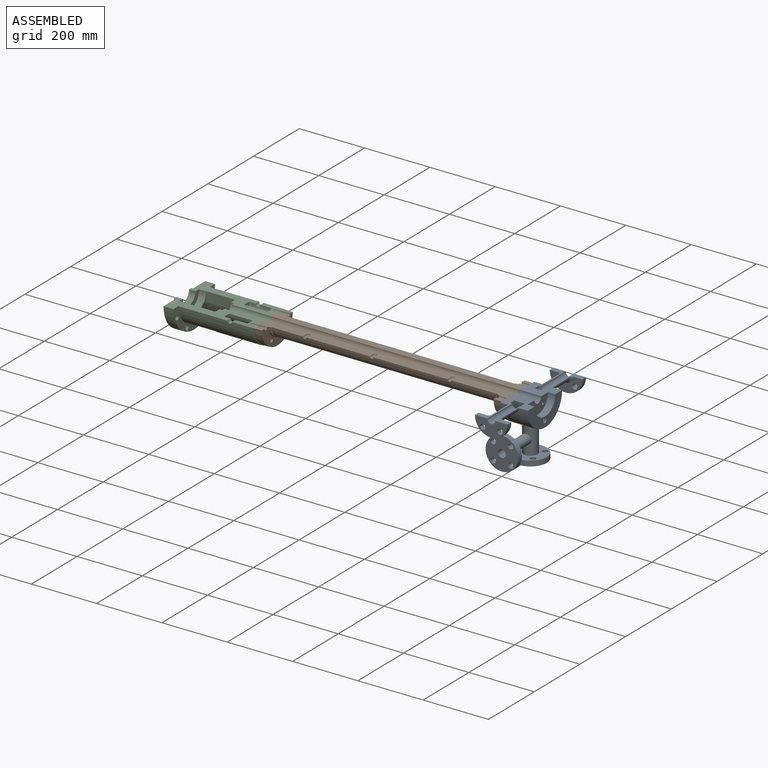
[diagram: assembled view]
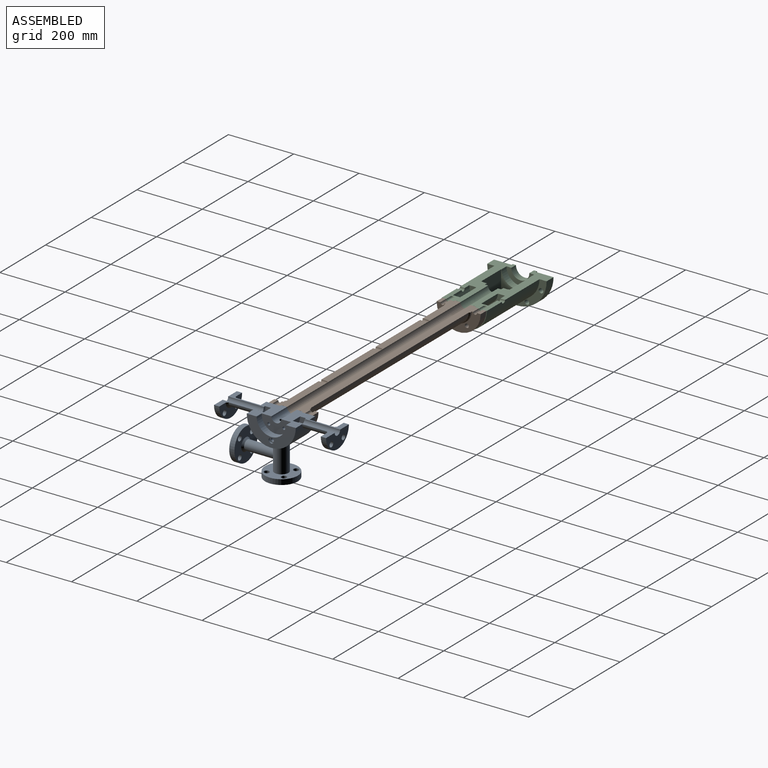
[diagram: assembled view, second angle]
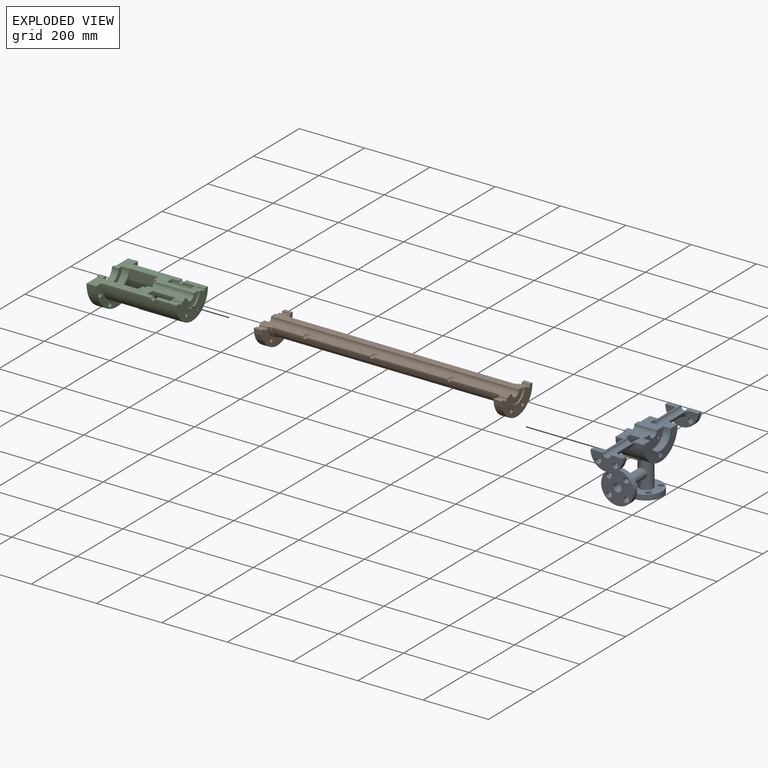
[diagram: exploded view]
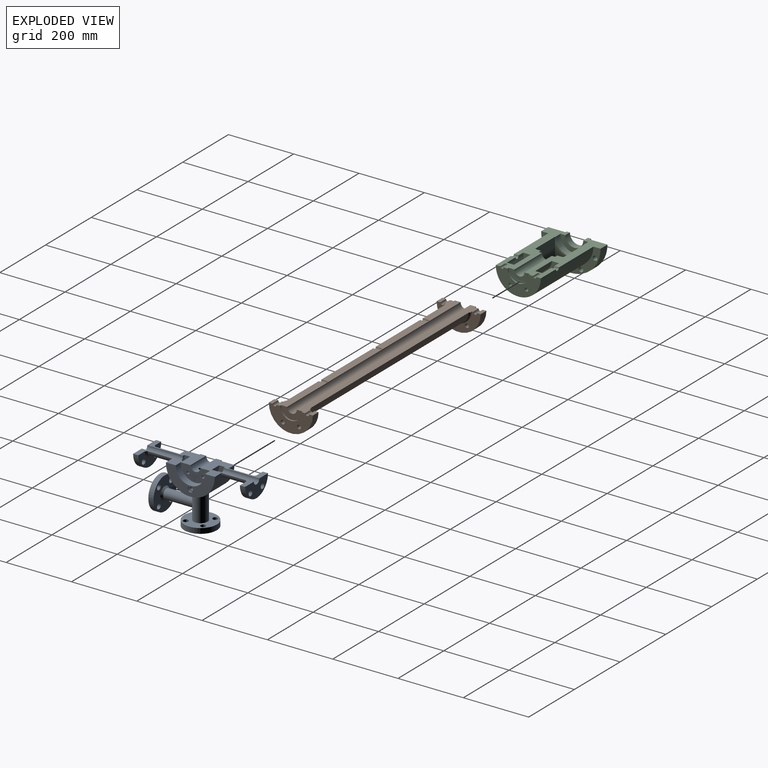
[diagram: exploded view, second angle]
ASSEMBLY  parts=3 mates=2
PART A: 78 faces, bbox 100x343x173 mm
  f0: plane 49.2x24.6mm, normal (-1,0,0), area 597.2mm2, adj f2,f29,f76,f77
  f1: cylinder r=12mm len=110.16mm, axis (0,1,0), area 4131.1mm2, adj f9,f21,f76
  f2: cylinder r=15mm len=68.5mm, axis (1,0,0), area 3139.9mm2, adj f0,f7,f32,f76,f77
  f3: cylinder r=75mm len=150mm, axis (-1,0,0), area 17845.1mm2, adj f5,f16,f24,f28,f38,f76,f77
  f4: plane 65x32.5mm, normal (-1,0,0), area 462.6mm2, adj f8,f30,f76,f77
  f5: plane 150x75mm, normal (1,0,0), area 5482mm2, adj f3,f6,f73,f76,f77
  f6: cylinder r=44.8mm len=89.6mm, axis (1,0,0), area 3096.4mm2, adj f5,f7,f76,f77
  f7: plane 89.6x44.8mm, normal (1,0,0), area 2685.7mm2, adj f2,f6,f44,f46,f76,f77
  f8: cylinder r=32.5mm len=65mm, axis (-1,0,0), area 510.5mm2, adj f4,f28,f76,f77
  f9: cylinder r=62.5mm len=61.34mm, axis (-1,0,0), area 2456.1mm2, adj f1,f14,f27,f36,f40,f76
  f10: cylinder r=62.5mm len=61.34mm, axis (-1,0,0), area 2456.1mm2, adj f13,f15,f26,f37,f40,f77
  f11: cylinder r=44.5mm len=42.85mm, axis (-1,0,0), area 1848mm2, adj f14,f27,f36,f76
  f12: cylinder r=44.5mm len=42.85mm, axis (-1,0,0), area 1848mm2, adj f13,f26,f37,f77
  f13: plane 61.34x50.5mm, normal (-1,0,0), area 1294.8mm2, adj f10,f12,f37,f77
  f14: plane 61.34x50.5mm, normal (-1,0,0), area 1294.8mm2, adj f9,f11,f36,f76
  f15: cylinder r=12mm len=110.16mm, axis (0,-1,0), area 4131.1mm2, adj f10,f19,f77
  f16: cylinder r=16.5mm len=77.34mm, axis (0,-1,0), area 3961.1mm2, adj f3,f20,f77
  f17: cylinder r=50mm len=100mm, axis (0,-1,0), area 2513.3mm2, adj f18,f19,f77
  f18: plane 100x50mm, normal (0,1,0), area 2798.8mm2, adj f17,f20,f47,f48,f77
  f19: plane 100x50mm, normal (0,-1,0), area 3298.7mm2, adj f15,f17,f47,f48,f77
  f20: cone r=16.5mm half-angle=45deg, axis (0,-1,0), area 422.1mm2, adj f16,f18,f77
  f21: plane 100x50mm, normal (0,1,0), area 3298.7mm2, adj f1,f23,f49,f50,f76
  f22: plane 100x50mm, normal (0,-1,0), area 2798.8mm2, adj f23,f25,f49,f50,f76
  f23: cylinder r=50mm len=100mm, axis (0,1,0), area 2513.3mm2, adj f21,f22,f76
  f24: cylinder r=16.5mm len=77.34mm, axis (0,1,0), area 3961.1mm2, adj f3,f25,f76
  f25: cone r=16.5mm half-angle=45deg, axis (0,1,0), area 422.1mm2, adj f22,f24,f76
  f26: plane 61.34x50.5mm, normal (1,0,0), area 1294.8mm2, adj f10,f12,f37,f77
  f27: plane 61.34x50.5mm, normal (1,0,0), area 1294.8mm2, adj f9,f11,f36,f76
  f28: plane 150x75mm, normal (-1,0,0), area 7176.6mm2, adj f3,f8,f76,f77
  f29: cylinder r=24.6mm len=49.2mm, axis (-1,0,0), area 85mm2, adj f0,f31,f76,f77
  f30: cylinder r=27.6mm len=55.2mm, axis (-1,0,0), area 95.4mm2, adj f4,f31,f76,f77
  f31: plane 55.2x27.6mm, normal (-1,0,0), area 246mm2, adj f29,f30,f76,f77
  f32: cylinder r=5.25mm len=158.95mm, axis (0,0,-1), area 5124.4mm2, adj f2,f61,f75
  f33: cylinder r=21.25mm len=87.6mm, axis (0,0,1), area 10933.5mm2, adj f39,f56,f70
  f34: plane 35x35mm, normal (0,0,-1), area 106.8mm2, adj f40,f62
  f35: cylinder r=62.5mm len=33mm, axis (-1,0,0), area 400.8mm2, adj f36,f37,f40,f41
  f36: plane 32x18.49mm, normal (0,1,0), area 591.5mm2, adj f9,f11,f14,f27,f35
  f37: plane 32x18.49mm, normal (0,-1,0), area 591.5mm2, adj f10,f12,f13,f26,f35
  f38: cylinder r=21.3mm len=42.6mm, axis (0,0,-1), area 744.3mm2, adj f3,f39
  f39: plane 42.6x42.6mm, normal (0,0,-1), area 6.7mm2, adj f33,f38
  f40: cylinder r=16.5mm len=33mm, axis (0,0,-1), area 674.3mm2, adj f9,f10,f34,f35
  f41: cylinder r=10.05mm len=20.1mm, axis (0,0,-1), area 37.6mm2, adj f35,f42
  f42: plane 20.1x20.1mm, normal (0,0,-1), area 3.1mm2, adj f41,f59
  f43: cone r=0mm half-angle=59deg, axis (1,0,0), area 66.2mm2, adj f44
  f44: cylinder r=4.25mm len=19.5mm, axis (1,0,0), area 520.7mm2, adj f7,f43
  f45: cone r=0mm half-angle=59deg, axis (1,0,0), area 66.2mm2, adj f46
  f46: cylinder r=4.25mm len=19.5mm, axis (1,0,0), area 520.7mm2, adj f7,f45
  f47: cylinder r=8mm len=16mm, axis (0,-1,0), area 804.2mm2, adj f18,f19
  f48: cylinder r=8mm len=16mm, axis (0,-1,0), area 804.2mm2, adj f18,f19
  f49: cylinder r=8mm len=16mm, axis (0,1,0), area 804.2mm2, adj f21,f22
  f50: cylinder r=8mm len=16mm, axis (0,1,0), area 804.2mm2, adj f21,f22
  f51: cylinder r=8mm len=16mm, axis (0,0,-1), area 804.2mm2, adj f56,f57
  f52: cylinder r=8mm len=16mm, axis (0,0,-1), area 804.2mm2, adj f56,f57
  f53: cylinder r=8mm len=16mm, axis (0,0,-1), area 804.2mm2, adj f56,f57
  f54: cylinder r=8mm len=16mm, axis (0,0,-1), area 804.2mm2, adj f56,f57
  f55: cylinder r=50mm len=100mm, axis (0,0,-1), area 5026.5mm2, adj f56,f57
  f56: plane 100x100mm, normal (0,0,1), area 5631.1mm2, adj f33,f51,f52,f53,f54,f55
  f57: plane 100x100mm, normal (0,0,-1), area 5793.1mm2, adj f51,f52,f53,f54,f55,f60
  f58: plane 35x35mm, normal (0,0,1), area 648mm2, adj f59,f62
  f59: cylinder r=10mm len=89mm, axis (0,0,-1), area 5592mm2, adj f42,f58
  f60: cylinder r=20mm len=40mm, axis (0,0,1), area 188.5mm2, adj f57,f61
  f61: plane 40x40mm, normal (0,0,-1), area 1170mm2, adj f32,f60
  f62: cylinder r=17.5mm len=82.6mm, axis (0,0,1), area 8596.9mm2, adj f34,f58,f72
  f63: cylinder r=8mm len=16mm, axis (0,-1,0), area 804.2mm2, adj f68,f69
  f64: cylinder r=8mm len=16mm, axis (0,-1,0), area 804.2mm2, adj f68,f69
  f65: cylinder r=8mm len=16mm, axis (0,-1,0), area 804.2mm2, adj f68,f69
  f66: cylinder r=8mm len=16mm, axis (0,-1,0), area 804.2mm2, adj f68,f69
  f67: cylinder r=50mm len=100mm, axis (0,-1,0), area 5026.5mm2, adj f68,f69
  f68: plane 100x100mm, normal (0,1,0), area 5793.1mm2, adj f63,f64,f65,f66,f67,f71
  f69: plane 100x100mm, normal (0,-1,0), area 6597.3mm2, adj f63,f64,f65,f66,f67,f72
  f70: cylinder r=15mm len=88.95mm, axis (0,-1,0), area 8078.5mm2, adj f33,f71
  f71: cone r=15mm half-angle=45deg, axis (0,-1,0), area 777.5mm2, adj f68,f70
  f72: cylinder r=12mm len=112.26mm, axis (0,-1,0), area 8277.9mm2, adj f62,f69
  f73: cylinder r=8mm len=16mm, axis (1,0,0), area 251.3mm2, adj f5,f74
  f74: plane 16x16mm, normal (1,0,0), area 117.7mm2, adj f73,f75
  f75: cylinder r=5.15mm len=38.48mm, axis (1,0,0), area 1164.8mm2, adj f32,f74
  f76: plane 156.5x100mm, normal (0,0,1), area 5648.1mm2, adj f0,f1,f2,f3,f4,f5,f6,f7
  f77: plane 156.5x100mm, normal (0,0,1), area 5648.1mm2, adj f0,f2,f3,f4,f5,f6,f7,f8
PART B: 36 faces, bbox 764x135x67.5 mm
  f0: cylinder r=37.5mm len=691mm, axis (-1,0,0), area 81250mm2, adj f9,f11,f20,f22,f24,f30,f31
  f1: cylinder r=67.5mm len=135mm, axis (-1,0,0), area 5301.4mm2, adj f2,f3,f34,f35
  f2: plane 135x67.5mm, normal (1,0,0), area 4298.7mm2, adj f1,f4,f5,f8,f26,f27,f30,f31
  f3: plane 135x67.5mm, normal (-1,0,0), area 5152.8mm2, adj f1,f4,f5,f6,f26,f27,f30,f31
  f4: cylinder r=6.05mm len=25mm, axis (-1,0,0), area 475.2mm2, adj f2,f3,f31,f35
  f5: cylinder r=6.05mm len=25mm, axis (-1,0,0), area 475.2mm2, adj f2,f3,f30,f34
  f6: cylinder r=32.5mm len=65mm, axis (1,0,0), area 510.5mm2, adj f3,f7,f30,f31
  f7: plane 65x32.5mm, normal (-1,0,0), area 1305.7mm2, adj f6,f19,f30,f31
  f8: cylinder r=40mm len=80mm, axis (-1,0,0), area 816.8mm2, adj f2,f9,f30,f31
  f9: cone r=37.5mm half-angle=45deg, axis (-1,0,0), area 430.4mm2, adj f0,f8,f30,f31
  f10: cylinder r=40mm len=80mm, axis (-1,0,0), area 816.8mm2, adj f11,f16,f30,f31
  f11: cone r=40mm half-angle=45deg, axis (1,0,0), area 430.4mm2, adj f0,f10,f30,f31
  f12: cylinder r=6.05mm len=25mm, axis (-1,0,0), area 475.2mm2, adj f15,f16,f30,f32
  f13: cylinder r=6.05mm len=25mm, axis (-1,0,0), area 475.2mm2, adj f15,f16,f31,f33
  f14: cylinder r=67.5mm len=135mm, axis (-1,0,0), area 5301.4mm2, adj f15,f16,f32,f33
  f15: plane 135x67.5mm, normal (1,0,0), area 5147.7mm2, adj f12,f13,f14,f17,f28,f29,f30,f31
  f16: plane 135x67.5mm, normal (-1,0,0), area 4298.7mm2, adj f10,f12,f13,f14,f28,f29,f30,f31
  f17: cylinder r=32.55mm len=65.1mm, axis (1,0,0), area 511.3mm2, adj f15,f18,f30,f31
  f18: plane 65.1x32.55mm, normal (1,0,0), area 1310.8mm2, adj f17,f19,f30,f31
  f19: cylinder r=15mm len=759mm, axis (-1,0,0), area 35767mm2, adj f7,f18,f30,f31
  f20: cylinder r=5.75mm len=18.85mm, axis (0,-1,0), area 336.8mm2, adj f0,f21,f30
  f21: cone r=0mm half-angle=59deg, axis (0,-1,0), area 60.7mm2, adj f20,f30
  f22: cylinder r=5.75mm len=18.85mm, axis (0,-1,0), area 336.8mm2, adj f0,f23,f30
  f23: cone r=0mm half-angle=59deg, axis (0,-1,0), area 60.7mm2, adj f22,f30
  f24: cylinder r=5.75mm len=18.85mm, axis (0,-1,0), area 336.8mm2, adj f0,f25,f30
  f25: cone r=0mm half-angle=59deg, axis (0,-1,0), area 60.7mm2, adj f24,f30
  f26: cylinder r=6.05mm len=25mm, axis (-1,0,0), area 950.3mm2, adj f2,f3
  f27: cylinder r=6.05mm len=25mm, axis (-1,0,0), area 950.3mm2, adj f2,f3
  f28: cylinder r=6.05mm len=25mm, axis (-1,0,0), area 950.3mm2, adj f15,f16
  f29: cylinder r=6.05mm len=25mm, axis (-1,0,0), area 950.3mm2, adj f15,f16
  f30: plane 764x28.95mm, normal (0,0,1), area 16728mm2, adj f0,f2,f3,f5,f6,f7,f8,f9
  f31: plane 764x28.95mm, normal (0,0,1), area 17438.5mm2, adj f0,f2,f3,f4,f6,f7,f8,f9
  f32: plane 25x11.45mm, normal (0,0,1), area 286.3mm2, adj f12,f14,f15,f16
  f33: plane 25x11.45mm, normal (0,0,1), area 286.3mm2, adj f13,f14,f15,f16
  f34: plane 25x11.45mm, normal (0,0,1), area 286.3mm2, adj f1,f2,f3,f5
  f35: plane 25x11.45mm, normal (0,0,1), area 286.3mm2, adj f1,f2,f3,f4
PART C: 49 faces, bbox 265x182x91 mm
  f0: cylinder r=69mm len=229.8mm, axis (-1,0,0), area 41481.1mm2, adj f6,f7,f8,f9,f10,f11,f29,f32
  f1: plane 49x24.5mm, normal (1,0,0), area 584.7mm2, adj f2,f26,f47,f48
  f2: cylinder r=15.1mm len=120.3mm, axis (1,0,0), area 5706.8mm2, adj f1,f19,f47,f48
  f3: cylinder r=27.5mm len=55mm, axis (-1,0,0), area 1736.5mm2, adj f13,f14,f47,f48
  f4: cylinder r=91mm len=182mm, axis (1,0,0), area 8633.7mm2, adj f5,f6,f47,f48
  f5: plane 182x91mm, normal (-1,0,0), area 10183.1mm2, adj f4,f12,f34,f35,f36,f37,f47,f48
  f6: plane 182x91mm, normal (1,0,0), area 4913.5mm2, adj f0,f4,f34,f35,f36,f37,f47,f48
  f7: plane 138x69mm, normal (1,0,0), area 5564.3mm2, adj f0,f21,f23,f25,f43,f45,f47,f48
  f8: plane 87x69mm, normal (1,0,0), area 2740.2mm2, adj f0,f10,f11,f15,f47,f48
  f9: plane 87x69mm, normal (-1,0,0), area 3064.2mm2, adj f0,f10,f11,f16,f47,f48
  f10: plane 87x53.56mm, normal (0,-1,0), area 4659.8mm2, adj f0,f8,f9,f47
  f11: plane 87x53.56mm, normal (0,1,0), area 4659.8mm2, adj f0,f8,f9,f48
  f12: cylinder r=37.5mm len=75mm, axis (1,0,0), area 589mm2, adj f5,f13,f47,f48
  f13: plane 75x37.5mm, normal (-1,0,0), area 1021mm2, adj f3,f12,f47,f48
  f14: plane 85x42.5mm, normal (1,0,0), area 1649.3mm2, adj f3,f15,f47,f48
  f15: cylinder r=42.5mm len=85mm, axis (1,0,0), area 2924mm2, adj f8,f14,f47,f48
  f16: cylinder r=40mm len=80mm, axis (-1,0,0), area 188.5mm2, adj f9,f17,f47,f48
  f17: plane 80x40mm, normal (-1,0,0), area 1503.8mm2, adj f16,f18,f39,f41,f47,f48
  f18: cylinder r=25mm len=50mm, axis (-1,0,0), area 722.6mm2, adj f17,f19,f47,f48
  f19: plane 50x25mm, normal (-1,0,0), area 623.6mm2, adj f2,f18,f47,f48
  f20: cone r=0mm half-angle=59deg, axis (1,0,0), area 48.6mm2, adj f21,f48
  f21: cylinder r=5.15mm len=20mm, axis (1,0,0), area 323.6mm2, adj f7,f20,f48
  f22: cone r=0mm half-angle=59deg, axis (1,0,0), area 48.6mm2, adj f23,f47
  f23: cylinder r=5.15mm len=20mm, axis (1,0,0), area 323.6mm2, adj f7,f22,f47
  f24: plane 65.1x32.55mm, normal (1,0,0), area 476.3mm2, adj f25,f27,f47,f48
  f25: cylinder r=32.55mm len=65.1mm, axis (1,0,0), area 511.3mm2, adj f7,f24,f47,f48
  f26: cylinder r=24.5mm len=49mm, axis (1,0,0), area 77mm2, adj f1,f28,f47,f48
  f27: cylinder r=27.5mm len=55mm, axis (1,0,0), area 86.4mm2, adj f24,f28,f47,f48
  f28: plane 55x27.5mm, normal (1,0,0), area 245mm2, adj f26,f27,f47,f48
  f29: cylinder r=6.75mm len=14.87mm, axis (0,-1,0), area 307.2mm2, adj f0,f33,f48
  f30: plane 109.1x54.55mm, normal (1,0,0), area 3010mm2, adj f33,f46,f47,f48
  f31: plane 109.1x54.55mm, normal (-1,0,0), area 3010mm2, adj f33,f46,f47,f48
  f32: cylinder r=6.75mm len=14.87mm, axis (0,1,0), area 307.2mm2, adj f0,f33,f47
  f33: cylinder r=54.55mm len=109.1mm, axis (1,0,0), area 12195.7mm2, adj f29,f30,f31,f32,f47,f48
  f34: cylinder r=7mm len=30.2mm, axis (1,0,0), area 1328.3mm2, adj f5,f6
  f35: cylinder r=7mm len=30.2mm, axis (1,0,0), area 1328.3mm2, adj f5,f6
  f36: cylinder r=7mm len=30.2mm, axis (1,0,0), area 1328.3mm2, adj f5,f6
  f37: cylinder r=7mm len=30.2mm, axis (1,0,0), area 1328.3mm2, adj f5,f6
  f38: cone r=0mm half-angle=59deg, axis (-1,0,0), area 16.2mm2, adj f39
  f39: cylinder r=2.1mm len=12.4mm, axis (-1,0,0), area 163.6mm2, adj f17,f38
  f40: cone r=0mm half-angle=59deg, axis (-1,0,0), area 16.2mm2, adj f41
  f41: cylinder r=2.1mm len=12.4mm, axis (-1,0,0), area 163.6mm2, adj f17,f40
  f42: cone r=0mm half-angle=59deg, axis (1,0,0), area 97.2mm2, adj f43
  f43: cylinder r=5.15mm len=20mm, axis (1,0,0), area 647.2mm2, adj f7,f42
  f44: cone r=0mm half-angle=59deg, axis (1,0,0), area 97.2mm2, adj f45
  f45: cylinder r=5.15mm len=20mm, axis (1,0,0), area 647.2mm2, adj f7,f44
  f46: cylinder r=32.55mm len=72mm, axis (1,0,0), area 7362.6mm2, adj f30,f31,f47,f48
  f47: plane 265x75.9mm, normal (0,0,1), area 9250.7mm2, adj f0,f1,f2,f3,f4,f5,f6,f7
  f48: plane 265x75.9mm, normal (0,0,1), area 9250.7mm2, adj f0,f1,f2,f3,f4,f5,f6,f7
PLACE A t=(774.39,97.15,0)mm
PLACE B t=(20.39,97.15,0)mm
PLACE C t=(-34.36,97.15,0)mm
MATE fastened C.f2 <-> B.f19  axis (1,0,0) through (15.39,97.15,0)mm
MATE fastened A.f2 <-> B.f19  axis (1,0,0) through (774.39,97.15,0)mm
